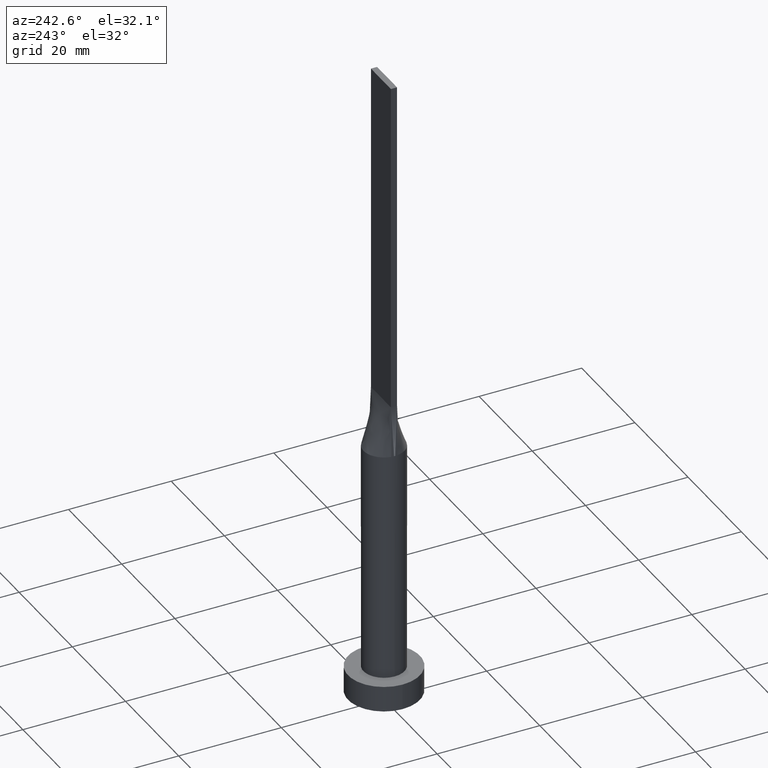
[diagram: clean part render]
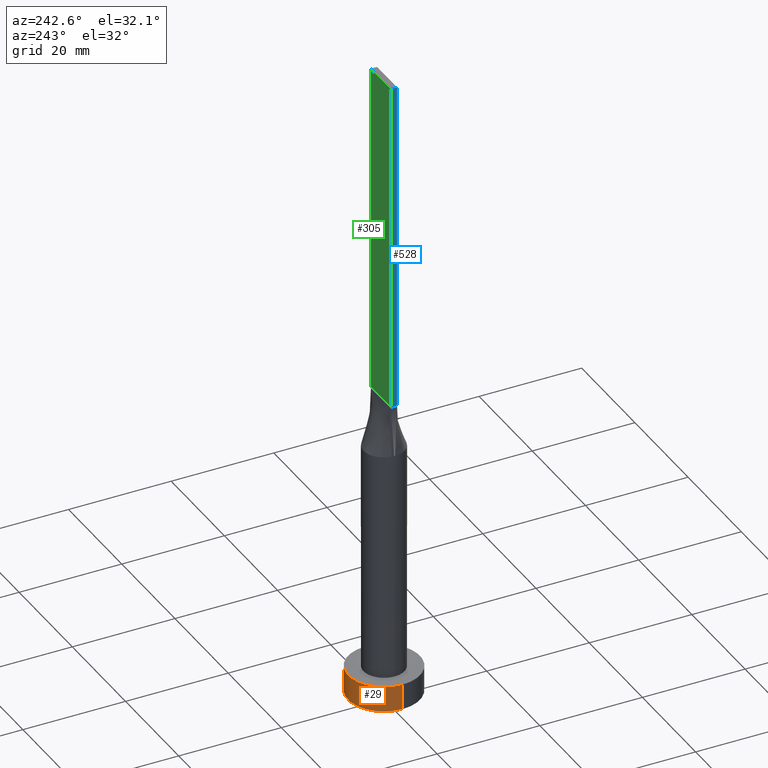
[diagram: same view with three faces highlighted in distinct colors, each labeled with its STEP entity id]
A machine part, auxiliary view with three faces highlighted in distinct colors.
Their STEP definitions:

[orange] entity #29 — the highlighted cylindrical surface (partial cylindrical patch) has radius 7 mm, axis along (-0, -0, -1).
#9 = VERTEX_POINT ( 'NONE', #192 ) ;
#12 = VERTEX_POINT ( 'NONE', #267 ) ;
#15 = VECTOR ( 'NONE', #290, 1000.000000000000000 ) ;
#29 = ADVANCED_FACE ( 'NONE', ( #458 ), #59, .T. ) ;
#34 = ORIENTED_EDGE ( 'NONE', *, *, #116, .T. ) ;
#40 = EDGE_CURVE ( 'NONE', #9, #12, #138, .T. ) ;
#41 = CARTESIAN_POINT ( 'NONE',  ( 7.000000000000000000, 8.572527594031473190E-16, 0.000000000000000000 ) ) ;
#59 = CYLINDRICAL_SURFACE ( 'NONE', #276, 7.000000000000000000 ) ;
#92 = DIRECTION ( 'NONE',  ( -0.000000000000000000, -0.000000000000000000, -1.000000000000000000 ) ) ;
#97 = CARTESIAN_POINT ( 'NONE',  ( 7.000000000000000000, 8.572527594031473190E-16, 5.000000000000000000 ) ) ;
#113 = LINE ( 'NONE', #341, #15 ) ;
#116 = EDGE_CURVE ( 'NONE', #572, #150, #113, .T. ) ;
#138 = LINE ( 'NONE', #228, #442 ) ;
#150 = VERTEX_POINT ( 'NONE', #41 ) ;
#155 = DIRECTION ( 'NONE',  ( 0.000000000000000000, 0.000000000000000000, 1.000000000000000000 ) ) ;
#192 = CARTESIAN_POINT ( 'NONE',  ( -7.000000000000000000, 0.000000000000000000, 5.000000000000000000 ) ) ;
#228 = CARTESIAN_POINT ( 'NONE',  ( -7.000000000000000000, 0.000000000000000000, 5.000000000000000000 ) ) ;
#232 = DIRECTION ( 'NONE',  ( 0.000000000000000000, 0.000000000000000000, 1.000000000000000000 ) ) ;
#267 = CARTESIAN_POINT ( 'NONE',  ( -7.000000000000000000, 0.000000000000000000, 0.000000000000000000 ) ) ;
#276 = AXIS2_PLACEMENT_3D ( 'NONE', #399, #371, #483 ) ;
#290 = DIRECTION ( 'NONE',  ( -0.000000000000000000, -0.000000000000000000, -1.000000000000000000 ) ) ;
#300 = ORIENTED_EDGE ( 'NONE', *, *, #40, .F. ) ;
#341 = CARTESIAN_POINT ( 'NONE',  ( 7.000000000000000000, 8.572527594031473190E-16, 5.000000000000000000 ) ) ;
#366 = CIRCLE ( 'NONE', #374, 7.000000000000000000 ) ;
#371 = DIRECTION ( 'NONE',  ( -0.000000000000000000, -0.000000000000000000, -1.000000000000000000 ) ) ;
#373 = CARTESIAN_POINT ( 'NONE',  ( 0.000000000000000000, 0.000000000000000000, 0.000000000000000000 ) ) ;
#374 = AXIS2_PLACEMENT_3D ( 'NONE', #542, #232, #540 ) ;
#380 = CIRCLE ( 'NONE', #388, 7.000000000000000000 ) ;
#388 = AXIS2_PLACEMENT_3D ( 'NONE', #373, #155, #452 ) ;
#390 = EDGE_CURVE ( 'NONE', #150, #12, #380, .T. ) ;
#399 = CARTESIAN_POINT ( 'NONE',  ( 0.000000000000000000, 0.000000000000000000, 5.000000000000000000 ) ) ;
#412 = EDGE_CURVE ( 'NONE', #572, #9, #366, .T. ) ;
#442 = VECTOR ( 'NONE', #92, 1000.000000000000000 ) ;
#452 = DIRECTION ( 'NONE',  ( 1.000000000000000000, 0.000000000000000000, 0.000000000000000000 ) ) ;
#458 = FACE_OUTER_BOUND ( 'NONE', #513, .T. ) ;
#480 = ORIENTED_EDGE ( 'NONE', *, *, #390, .T. ) ;
#483 = DIRECTION ( 'NONE',  ( -1.000000000000000000, 0.000000000000000000, 0.000000000000000000 ) ) ;
#487 = ORIENTED_EDGE ( 'NONE', *, *, #412, .F. ) ;
#513 = EDGE_LOOP ( 'NONE', ( #487, #34, #480, #300 ) ) ;
#540 = DIRECTION ( 'NONE',  ( 1.000000000000000000, 0.000000000000000000, 0.000000000000000000 ) ) ;
#542 = CARTESIAN_POINT ( 'NONE',  ( 0.000000000000000000, 0.000000000000000000, 5.000000000000000000 ) ) ;
#572 = VERTEX_POINT ( 'NONE', #97 ) ;

[blue] entity #528 — the highlighted planar face has unit normal (1, 0, -0).
#3 = DIRECTION ( 'NONE',  ( 0.000000000000000000, -1.000000000000000000, 0.000000000000000000 ) ) ;
#14 = EDGE_CURVE ( 'NONE', #209, #164, #231, .T. ) ;
#21 = EDGE_CURVE ( 'NONE', #209, #177, #277, .T. ) ;
#52 = CARTESIAN_POINT ( 'NONE',  ( -3.750000000000000000, 0.6000000000000001998, 60.00000000000000000 ) ) ;
#60 = CARTESIAN_POINT ( 'NONE',  ( -3.750000000000000000, -0.5999999999999993117, 60.00000000000000000 ) ) ;
#71 = EDGE_LOOP ( 'NONE', ( #527, #167, #319, #185 ) ) ;
#128 = FACE_OUTER_BOUND ( 'NONE', #71, .T. ) ;
#144 = AXIS2_PLACEMENT_3D ( 'NONE', #302, #174, #269 ) ;
#164 = VERTEX_POINT ( 'NONE', #525 ) ;
#167 = ORIENTED_EDGE ( 'NONE', *, *, #581, .F. ) ;
#174 = DIRECTION ( 'NONE',  ( 1.000000000000000000, 0.000000000000000000, -0.000000000000000000 ) ) ;
#177 = VERTEX_POINT ( 'NONE', #52 ) ;
#185 = ORIENTED_EDGE ( 'NONE', *, *, #21, .T. ) ;
#187 = VECTOR ( 'NONE', #3, 1000.000000000000000 ) ;
#200 = LINE ( 'NONE', #548, #546 ) ;
#209 = VERTEX_POINT ( 'NONE', #574 ) ;
#231 = LINE ( 'NONE', #323, #187 ) ;
#269 = DIRECTION ( 'NONE',  ( -0.000000000000000000, 0.000000000000000000, -1.000000000000000000 ) ) ;
#277 = LINE ( 'NONE', #448, #464 ) ;
#302 = CARTESIAN_POINT ( 'NONE',  ( -3.750000000000000000, 0.6000000000000001998, 125.0000000000000000 ) ) ;
#315 = CARTESIAN_POINT ( 'NONE',  ( -3.750000000000000000, 0.6000000000000001998, 60.00000000000000000 ) ) ;
#319 = ORIENTED_EDGE ( 'NONE', *, *, #14, .F. ) ;
#323 = CARTESIAN_POINT ( 'NONE',  ( -3.750000000000000000, 0.6000000000000001998, 125.0000000000000000 ) ) ;
#386 = VERTEX_POINT ( 'NONE', #60 ) ;
#405 = DIRECTION ( 'NONE',  ( -0.000000000000000000, -0.000000000000000000, -1.000000000000000000 ) ) ;
#448 = CARTESIAN_POINT ( 'NONE',  ( -3.750000000000000000, 0.6000000000000001998, 125.0000000000000000 ) ) ;
#464 = VECTOR ( 'NONE', #541, 1000.000000000000000 ) ;
#490 = PLANE ( 'NONE',  #144 ) ;
#507 = VECTOR ( 'NONE', #566, 1000.000000000000000 ) ;
#514 = EDGE_CURVE ( 'NONE', #177, #386, #570, .T. ) ;
#525 = CARTESIAN_POINT ( 'NONE',  ( -3.750000000000000000, -0.5999999999999993117, 125.0000000000000000 ) ) ;
#527 = ORIENTED_EDGE ( 'NONE', *, *, #514, .T. ) ;
#528 = ADVANCED_FACE ( 'NONE', ( #128 ), #490, .F. ) ;
#541 = DIRECTION ( 'NONE',  ( -0.000000000000000000, -0.000000000000000000, -1.000000000000000000 ) ) ;
#546 = VECTOR ( 'NONE', #405, 1000.000000000000000 ) ;
#548 = CARTESIAN_POINT ( 'NONE',  ( -3.750000000000000000, -0.5999999999999993117, 125.0000000000000000 ) ) ;
#566 = DIRECTION ( 'NONE',  ( 0.000000000000000000, -1.000000000000000000, 0.000000000000000000 ) ) ;
#570 = LINE ( 'NONE', #315, #507 ) ;
#574 = CARTESIAN_POINT ( 'NONE',  ( -3.750000000000000000, 0.6000000000000001998, 125.0000000000000000 ) ) ;
#581 = EDGE_CURVE ( 'NONE', #164, #386, #200, .T. ) ;

[green] entity #305 — the highlighted planar face has unit normal (0, -1, 0).
#21 = EDGE_CURVE ( 'NONE', #209, #177, #277, .T. ) ;
#36 = DIRECTION ( 'NONE',  ( -0.000000000000000000, -0.000000000000000000, -1.000000000000000000 ) ) ;
#48 = LINE ( 'NONE', #226, #354 ) ;
#52 = CARTESIAN_POINT ( 'NONE',  ( -3.750000000000000000, 0.6000000000000001998, 60.00000000000000000 ) ) ;
#54 = ORIENTED_EDGE ( 'NONE', *, *, #21, .F. ) ;
#65 = AXIS2_PLACEMENT_3D ( 'NONE', #173, #401, #183 ) ;
#101 = VECTOR ( 'NONE', #331, 1000.000000000000000 ) ;
#108 = EDGE_CURVE ( 'NONE', #129, #209, #165, .T. ) ;
#122 = VERTEX_POINT ( 'NONE', #553 ) ;
#129 = VERTEX_POINT ( 'NONE', #472 ) ;
#159 = CARTESIAN_POINT ( 'NONE',  ( 3.750000000000000000, 0.6000000000000001998, 125.0000000000000000 ) ) ;
#165 = LINE ( 'NONE', #159, #101 ) ;
#173 = CARTESIAN_POINT ( 'NONE',  ( 3.750000000000000000, 0.6000000000000001998, 125.0000000000000000 ) ) ;
#177 = VERTEX_POINT ( 'NONE', #52 ) ;
#181 = EDGE_CURVE ( 'NONE', #129, #122, #301, .T. ) ;
#183 = DIRECTION ( 'NONE',  ( 0.000000000000000000, -0.000000000000000000, -1.000000000000000000 ) ) ;
#209 = VERTEX_POINT ( 'NONE', #574 ) ;
#226 = CARTESIAN_POINT ( 'NONE',  ( -3.750000000000000000, 0.6000000000000001998, 60.00000000000000000 ) ) ;
#264 = ORIENTED_EDGE ( 'NONE', *, *, #289, .T. ) ;
#277 = LINE ( 'NONE', #448, #464 ) ;
#289 = EDGE_CURVE ( 'NONE', #122, #177, #48, .T. ) ;
#301 = LINE ( 'NONE', #307, #505 ) ;
#304 = EDGE_LOOP ( 'NONE', ( #264, #54, #441, #531 ) ) ;
#305 = ADVANCED_FACE ( 'NONE', ( #449 ), #565, .F. ) ;
#307 = CARTESIAN_POINT ( 'NONE',  ( 3.750000000000000000, 0.6000000000000001998, 125.0000000000000000 ) ) ;
#331 = DIRECTION ( 'NONE',  ( -1.000000000000000000, 0.000000000000000000, 0.000000000000000000 ) ) ;
#354 = VECTOR ( 'NONE', #391, 1000.000000000000000 ) ;
#391 = DIRECTION ( 'NONE',  ( -1.000000000000000000, -0.000000000000000000, -0.000000000000000000 ) ) ;
#401 = DIRECTION ( 'NONE',  ( 0.000000000000000000, -1.000000000000000000, 0.000000000000000000 ) ) ;
#441 = ORIENTED_EDGE ( 'NONE', *, *, #108, .F. ) ;
#448 = CARTESIAN_POINT ( 'NONE',  ( -3.750000000000000000, 0.6000000000000001998, 125.0000000000000000 ) ) ;
#449 = FACE_OUTER_BOUND ( 'NONE', #304, .T. ) ;
#464 = VECTOR ( 'NONE', #541, 1000.000000000000000 ) ;
#472 = CARTESIAN_POINT ( 'NONE',  ( 3.750000000000000000, 0.6000000000000001998, 125.0000000000000000 ) ) ;
#505 = VECTOR ( 'NONE', #36, 1000.000000000000000 ) ;
#531 = ORIENTED_EDGE ( 'NONE', *, *, #181, .T. ) ;
#541 = DIRECTION ( 'NONE',  ( -0.000000000000000000, -0.000000000000000000, -1.000000000000000000 ) ) ;
#553 = CARTESIAN_POINT ( 'NONE',  ( 3.750000000000000000, 0.6000000000000001998, 60.00000000000000000 ) ) ;
#565 = PLANE ( 'NONE',  #65 ) ;
#574 = CARTESIAN_POINT ( 'NONE',  ( -3.750000000000000000, 0.6000000000000001998, 125.0000000000000000 ) ) ;